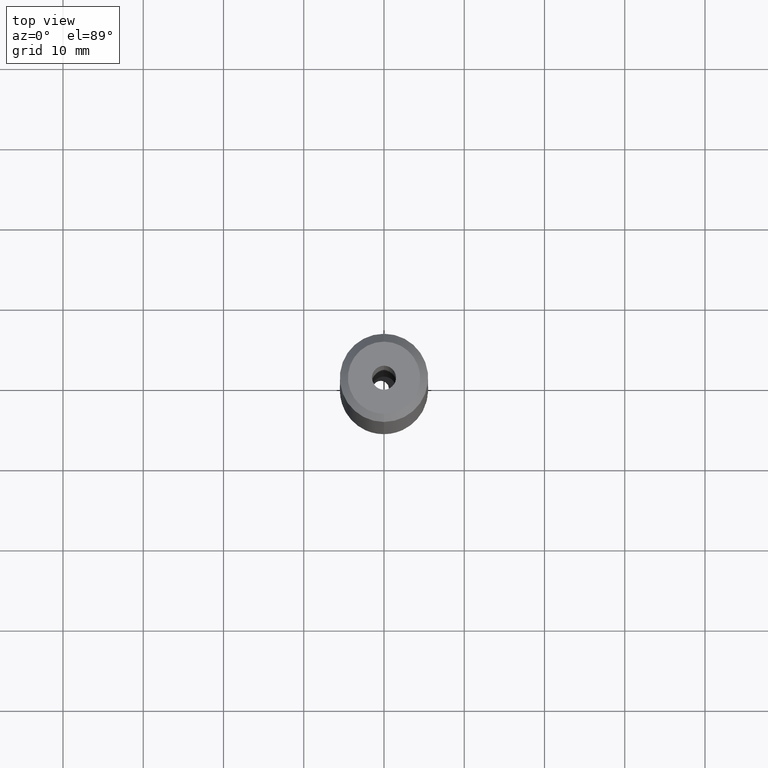
[diagram: clean part render]
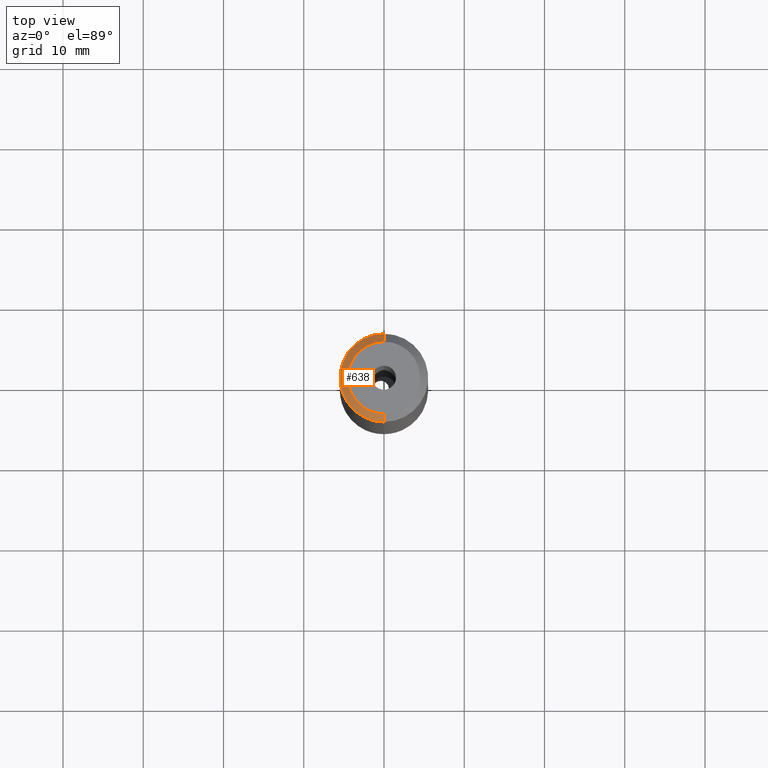
[diagram: same view with one face highlighted and labeled with its STEP entity id]
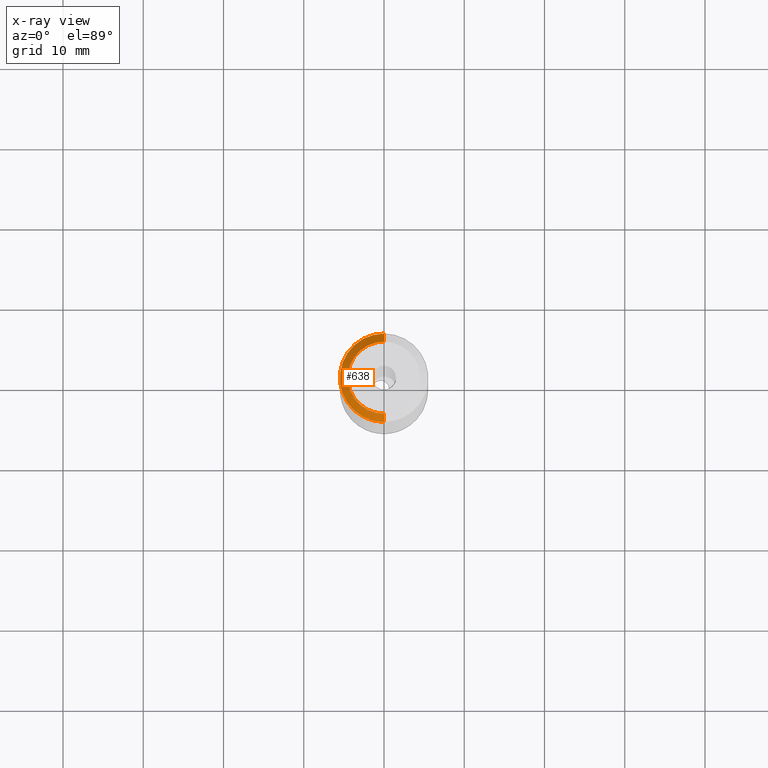
[diagram: x-ray of the same camera — body ghosted, the highlighted face saturated]
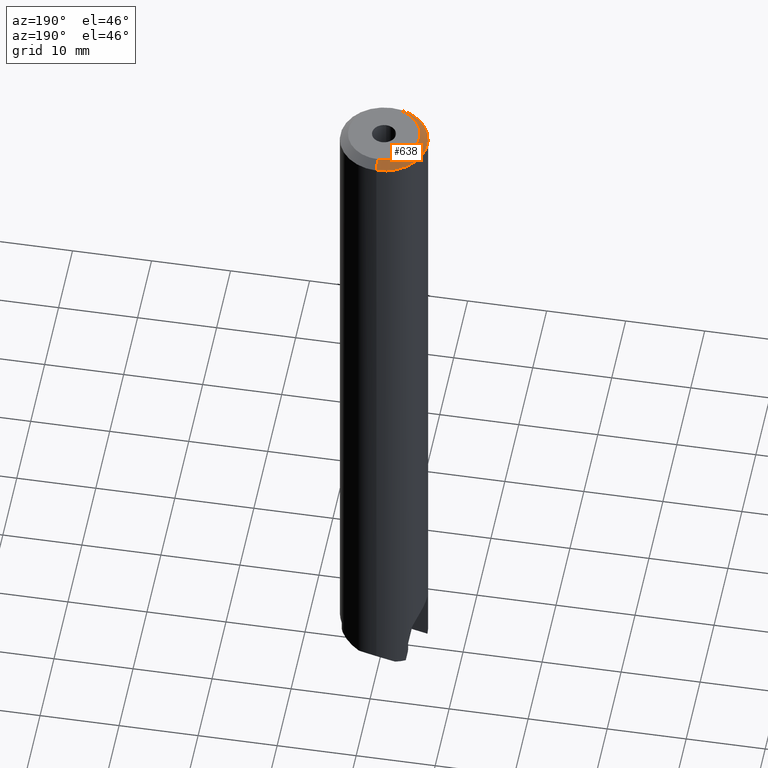
[diagram: same view with one face highlighted and labeled with its STEP entity id]
A machine part, top view. The second image highlights one B-rep face of the part: STEP entity #638.
The next image is the same camera in x-ray: the body ghosted, the highlighted face saturated — about 0% of this face is hidden behind the body in this view.
A second angle (auxiliary view) of the same face is appended — the face is thin or edge-on in the first view.
In plain terms, the highlighted conical surface has half-angle 45 deg.
Its self-contained STEP definition (entity closure, byte-faithful):
#422=VERTEX_POINT('NONE',#1028);
#504=VERTEX_POINT('NONE',#1114);
#584=EDGE_CURVE('NONE',#592,#622,#1206,.T.);
#592=VERTEX_POINT('NONE',#1215);
#622=VERTEX_POINT('NONE',#1252);
#638=ADVANCED_FACE('NONE',(#1270),#1271,.T.);
#680=EDGE_CURVE('NONE',#622,#504,#1315,.T.);
#696=EDGE_CURVE('NONE',#504,#422,#1331,.T.);
#842=EDGE_CURVE('NONE',#592,#422,#1498,.T.);
#1028=CARTESIAN_POINT('',(0.0,5.5,76.0));
#1114=CARTESIAN_POINT('',(-6.73555739531044E-016,-5.5,76.0));
#1206=CIRCLE('',#2249,4.5);
#1215=CARTESIAN_POINT('',(-6.12323399573677E-016,4.5,77.0));
#1252=CARTESIAN_POINT('',(0.0,-4.5,77.0));
#1270=FACE_OUTER_BOUND('',#2347,.T.);
#1271=CONICAL_SURFACE('',#2348,5.5,0.785398163397446);
#1315=LINE('',#2457,#2458);
#1331=CIRCLE('',#2482,5.5);
#1498=LINE('',#2774,#2775);
#2249=AXIS2_PLACEMENT_3D('',#3169,#3170,#3171);
#2347=EDGE_LOOP('',(#3274,#3275,#3276,#3277));
#2348=AXIS2_PLACEMENT_3D('',#3278,#3279,#3280);
#2457=CARTESIAN_POINT('',(0.0,-5.5,76.0));
#2458=VECTOR('',#3303,1000.0);
#2482=AXIS2_PLACEMENT_3D('',#3310,#3311,#3312);
#2774=CARTESIAN_POINT('',(-6.73555739531044E-016,5.5,76.0));
#2775=VECTOR('',#3524,1000.0);
#3169=CARTESIAN_POINT('',(0.0,0.0,77.0));
#3170=DIRECTION('',(0.0,-0.0,1.0));
#3171=DIRECTION('',(0.0,1.0,0.0));
#3274=ORIENTED_EDGE('',*,*,#584,.F.);
#3275=ORIENTED_EDGE('',*,*,#842,.T.);
#3276=ORIENTED_EDGE('',*,*,#696,.F.);
#3277=ORIENTED_EDGE('',*,*,#680,.F.);
#3278=CARTESIAN_POINT('',(0.0,0.0,76.0));
#3279=DIRECTION('',(-0.0,-0.0,-1.0));
#3280=DIRECTION('',(0.0,-1.0,0.0));
#3303=DIRECTION('',(0.0,-0.707106781186546,-0.707106781186549));
#3310=CARTESIAN_POINT('',(0.0,0.0,76.0));
#3311=DIRECTION('',(0.0,0.0,-1.0));
#3312=DIRECTION('',(0.0,1.0,0.0));
#3524=DIRECTION('',(-8.65956056235491E-017,0.707106781186546,-0.707106781186549));